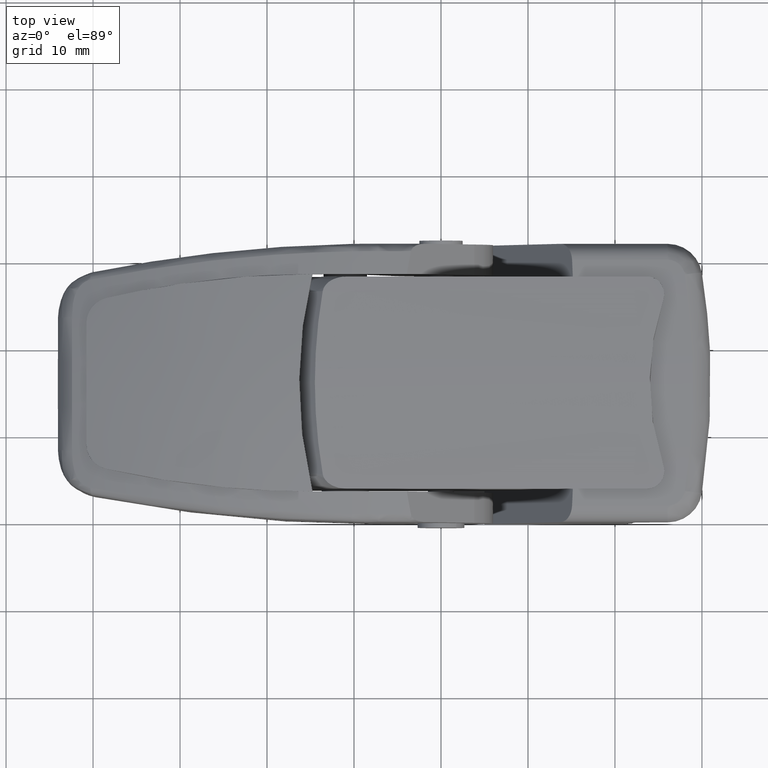
[diagram: clean part render]
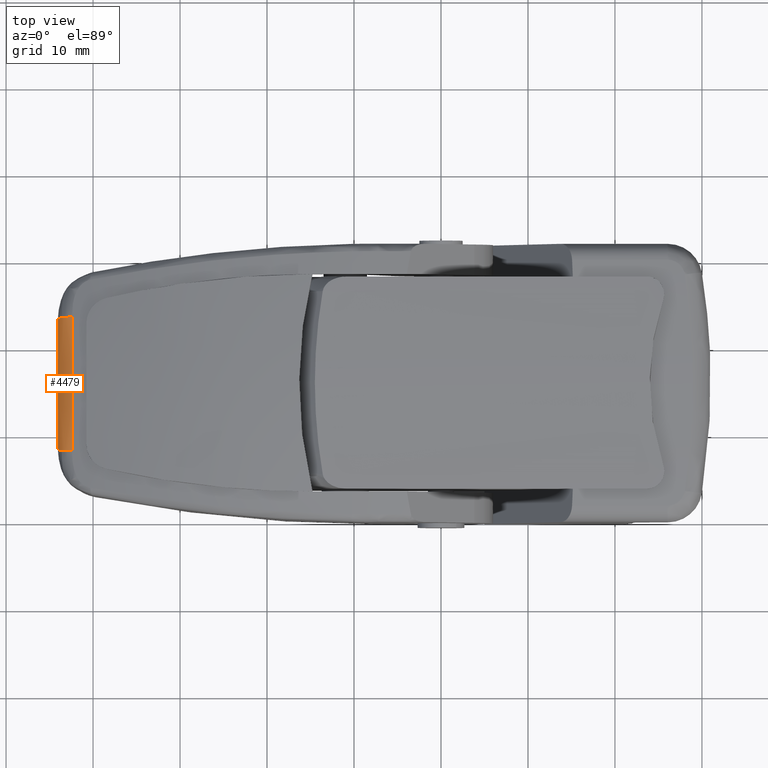
[diagram: same view with one face highlighted and labeled with its STEP entity id]
A machine part, top view. The second image highlights one B-rep face of the part: STEP entity #4479.
In plain terms, the highlighted face is a freeform B-spline surface patch.
Its self-contained STEP definition (entity closure, byte-faithful):
#172=B_SPLINE_SURFACE_WITH_KNOTS('',3,3,((#7944,#7945,#7946,#7947),(#7948,
#7949,#7950,#7951),(#7952,#7953,#7954,#7955),(#7956,#7957,#7958,#7959),
(#7960,#7961,#7962,#7963)),.UNSPECIFIED.,.F.,.F.,.F.,(4,1,4),(4,4),(0.,
0.571428571428571,1.),(-2.30997006268888,-0.811878899639819),
 .UNSPECIFIED.);
#491=FACE_OUTER_BOUND('',#796,.T.);
#796=EDGE_LOOP('',(#3374,#3375,#3376,#3377,#3378,#3379));
#1749=CIRCLE('',#4766,3.);
#1757=CIRCLE('',#4774,3.);
#1758=CIRCLE('',#4775,3.);
#1775=CIRCLE('',#4809,3.);
#1776=CIRCLE('',#4810,98.5956810711758);
#1777=CIRCLE('',#4811,101.005764206276);
#2000=VERTEX_POINT('',#6725);
#2002=VERTEX_POINT('',#6741);
#2019=VERTEX_POINT('',#7305);
#2020=VERTEX_POINT('',#7313);
#2022=VERTEX_POINT('',#7384);
#2072=VERTEX_POINT('',#7939);
#2464=EDGE_CURVE('',#2000,#2002,#1749,.T.);
#2488=EDGE_CURVE('',#2020,#2019,#1757,.T.);
#2492=EDGE_CURVE('',#2019,#2022,#1758,.T.);
#2558=EDGE_CURVE('',#2072,#2000,#1775,.T.);
#2560=EDGE_CURVE('',#2022,#2072,#1776,.T.);
#2561=EDGE_CURVE('',#2002,#2020,#1777,.T.);
#3374=ORIENTED_EDGE('',*,*,#2488,.T.);
#3375=ORIENTED_EDGE('',*,*,#2492,.T.);
#3376=ORIENTED_EDGE('',*,*,#2560,.T.);
#3377=ORIENTED_EDGE('',*,*,#2558,.T.);
#3378=ORIENTED_EDGE('',*,*,#2464,.T.);
#3379=ORIENTED_EDGE('',*,*,#2561,.T.);
#4479=ADVANCED_FACE('',(#491),#172,.F.);
#4766=AXIS2_PLACEMENT_3D('',#6754,#5409,#5410);
#4774=AXIS2_PLACEMENT_3D('',#7314,#5425,#5426);
#4775=AXIS2_PLACEMENT_3D('',#7388,#5427,#5428);
#4809=AXIS2_PLACEMENT_3D('',#7940,#5516,#5517);
#4810=AXIS2_PLACEMENT_3D('',#7964,#5518,#5519);
#4811=AXIS2_PLACEMENT_3D('',#7965,#5520,#5521);
#5409=DIRECTION('center_axis',(-1.50413432033233E-15,0.0759712133108982,
-0.997110011356856));
#5410=DIRECTION('ref_axis',(-1.,-3.70074341541718E-16,1.48029736616687E-15));
#5425=DIRECTION('center_axis',(5.16606763256563E-15,0.0759712133108961,
0.997110011356857));
#5426=DIRECTION('ref_axis',(-0.438488147139576,0.89613963234575,-0.0682781382092845));
#5427=DIRECTION('center_axis',(5.16606763256563E-15,0.0759712133108961,
0.997110011356857));
#5428=DIRECTION('ref_axis',(-0.438488147139576,0.89613963234575,-0.0682781382092845));
#5516=DIRECTION('center_axis',(-1.50413432033233E-15,0.0759712133108982,
-0.997110011356856));
#5517=DIRECTION('ref_axis',(-1.,-3.70074341541718E-16,1.48029736616687E-15));
#5518=DIRECTION('center_axis',(1.,0.,0.));
#5519=DIRECTION('ref_axis',(0.,0.997109650558774,0.07597594857953));
#5520=DIRECTION('center_axis',(-0.999983240449505,0.00578954403271099,0.));
#5521=DIRECTION('ref_axis',(0.00577271520399954,0.997076526799383,-0.0761910458312062));
#6725=CARTESIAN_POINT('',(-43.5442477598667,3.45124347482983,7.61166364271281));
#6741=CARTESIAN_POINT('',(-42.3154644414187,4.55466408339152,7.69573480985574));
#6754=CARTESIAN_POINT('Origin',(-41.,1.86624518635427,7.49090039522788));
#7305=CARTESIAN_POINT('',(-43.5442477598666,3.45124347482992,-7.61166364271281));
#7313=CARTESIAN_POINT('',(-42.3154644414187,4.55466408339152,-7.69573480985575));
#7314=CARTESIAN_POINT('Origin',(-41.,1.86624518635427,-7.49090039522789));
#7384=CARTESIAN_POINT('',(-44.,1.86624518635427,-7.49090039522788));
#7388=CARTESIAN_POINT('Origin',(-41.,1.86624518635427,-7.49090039522789));
#7939=CARTESIAN_POINT('',(-44.,1.86624518635427,7.49090039522788));
#7940=CARTESIAN_POINT('Origin',(-41.,1.86624518635427,7.49090039522788));
#7944=CARTESIAN_POINT('Ctrl Pts',(-42.3154644414187,4.55466408339152,7.69573480985574));
#7945=CARTESIAN_POINT('Ctrl Pts',(-42.3131980310175,4.94612365333198,2.57244571379183));
#7946=CARTESIAN_POINT('Ctrl Pts',(-42.3131980286074,4.94612406960937,-2.57244026569562));
#7947=CARTESIAN_POINT('Ctrl Pts',(-42.3154644414187,4.55466408339152,-7.69573480985575));
#7948=CARTESIAN_POINT('Ctrl Pts',(-42.8890540623802,4.27562206065963,7.67447420592016));
#7949=CARTESIAN_POINT('Ctrl Pts',(-42.8874586145158,4.66628864540814,2.56525979887963));
#7950=CARTESIAN_POINT('Ctrl Pts',(-42.8874586128192,4.66628906084228,-2.56525436575043));
#7951=CARTESIAN_POINT('Ctrl Pts',(-42.8890540623802,4.27562206065963,-7.67447420592016));
#7952=CARTESIAN_POINT('Ctrl Pts',(-43.7281559670696,3.45779941857873,7.61216314928213));
#7953=CARTESIAN_POINT('Ctrl Pts',(-43.7277376947036,3.84511311753699,2.54454139309117));
#7954=CARTESIAN_POINT('Ctrl Pts',(-43.7277376942588,3.84511352940567,-2.54453600419151));
#7955=CARTESIAN_POINT('Ctrl Pts',(-43.7281559670696,3.45779941857873,-7.61216314928213));
#7956=CARTESIAN_POINT('Ctrl Pts',(-44.,2.34352494502994,7.52726501090954));
#7957=CARTESIAN_POINT('Ctrl Pts',(-44.0000016540956,2.72569413978349,2.51608369338418));
#7958=CARTESIAN_POINT('Ctrl Pts',(-44.0000016540974,2.72569454618151,-2.5160783645032));
#7959=CARTESIAN_POINT('Ctrl Pts',(-44.,2.34352494502995,-7.52726501090955));
#7960=CARTESIAN_POINT('Ctrl Pts',(-44.,1.86624518635427,7.49090039522789));
#7961=CARTESIAN_POINT('Ctrl Pts',(-44.,2.24621294658093,2.50388437687876));
#7962=CARTESIAN_POINT('Ctrl Pts',(-44.,2.24621335063795,-2.5038790736951));
#7963=CARTESIAN_POINT('Ctrl Pts',(-44.,1.86624518635427,-7.49090039522789));
#7964=CARTESIAN_POINT('Origin',(-44.,-96.4444599131302,5.00710584105946E-13));
#7965=CARTESIAN_POINT('Origin',(-42.8985419521439,-96.1558124781197,6.38378239159465E-13));